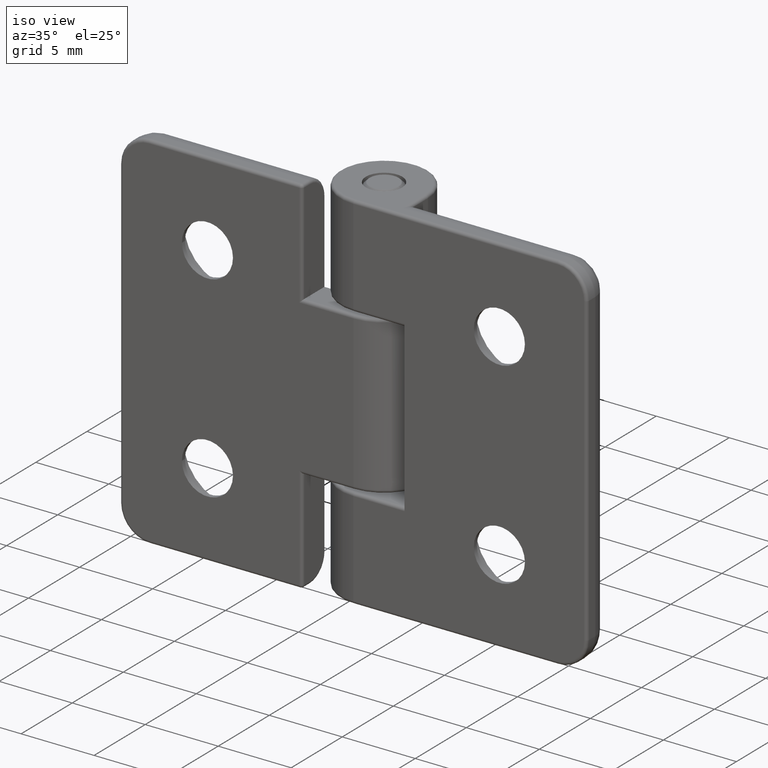
[diagram: clean part render]
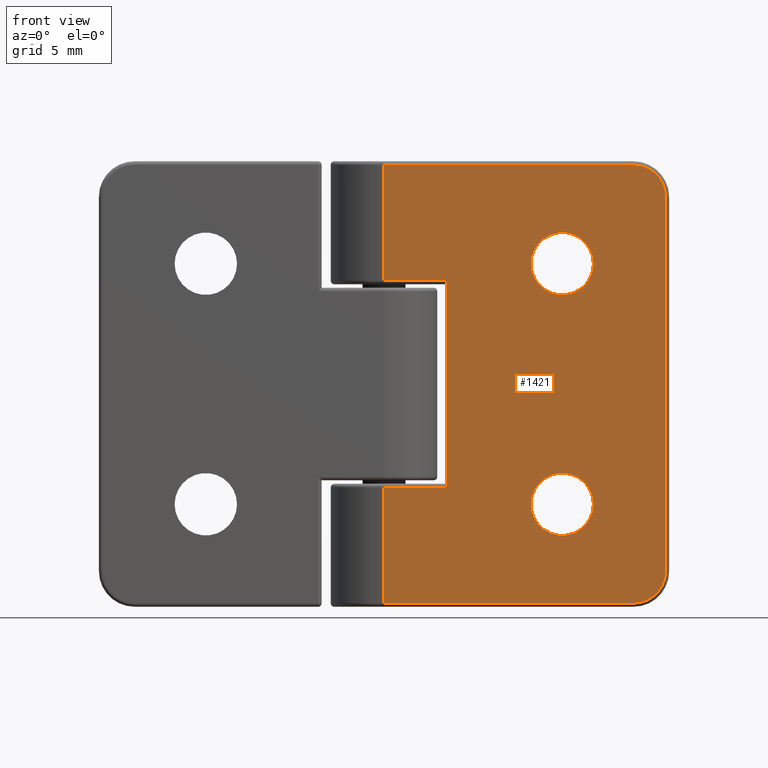
[diagram: tour spotlight — one face highlighted and labeled with its STEP entity id]
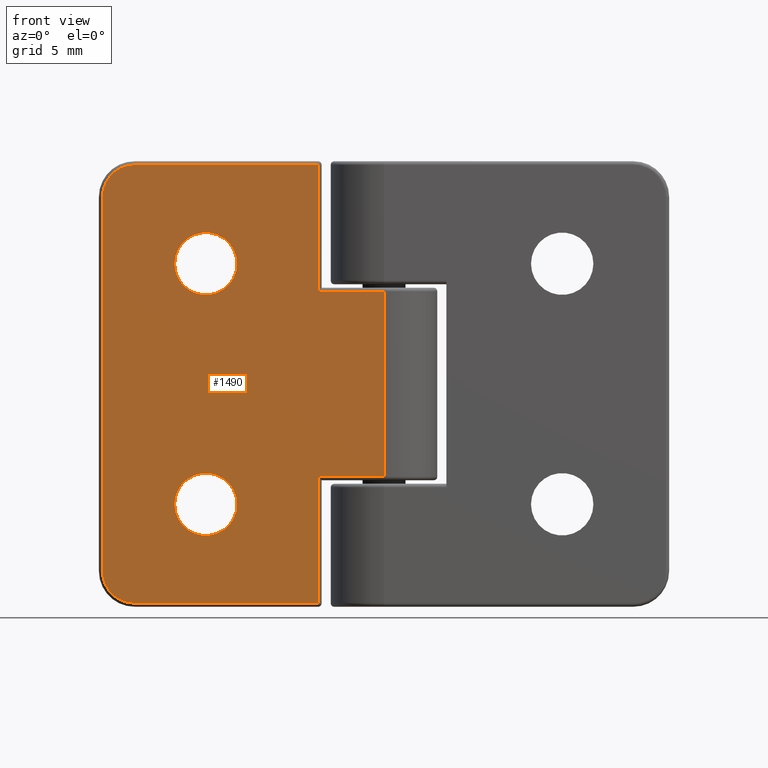
[diagram: tour spotlight — one face highlighted and labeled with its STEP entity id]
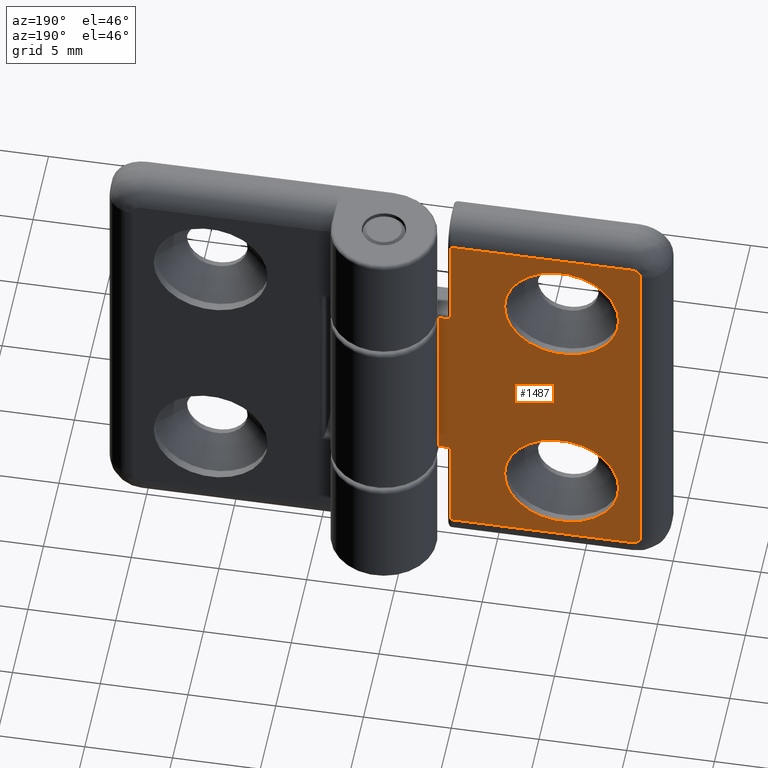
[diagram: tour spotlight — one face highlighted and labeled with its STEP entity id]
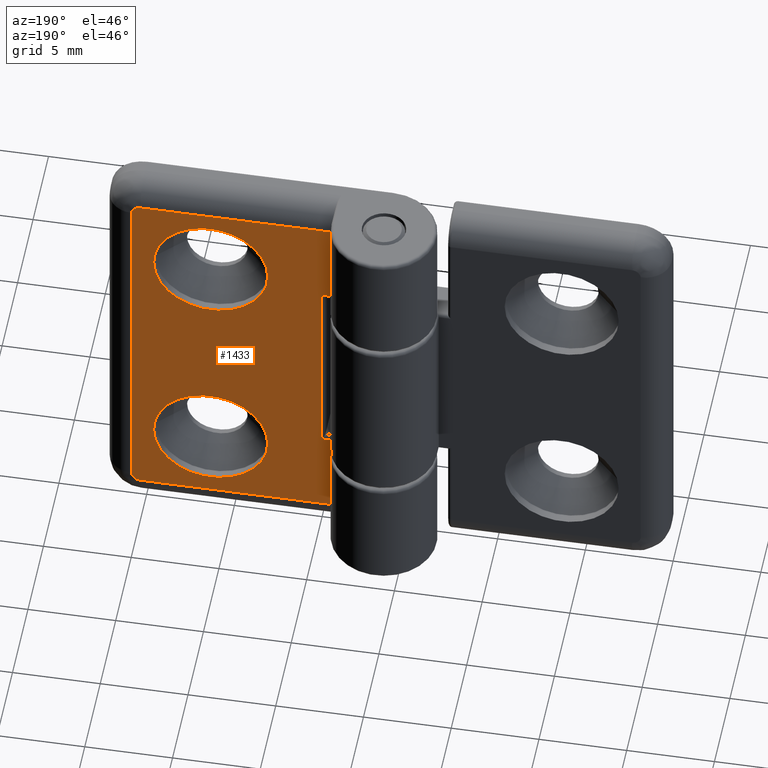
[diagram: tour spotlight — one face highlighted and labeled with its STEP entity id]
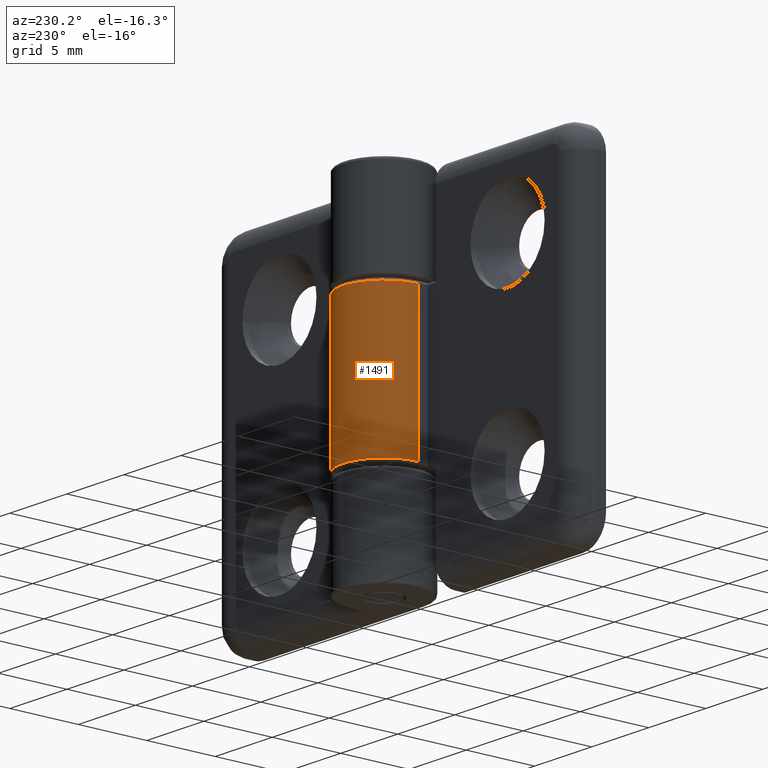
[diagram: tour spotlight — one face highlighted and labeled with its STEP entity id]
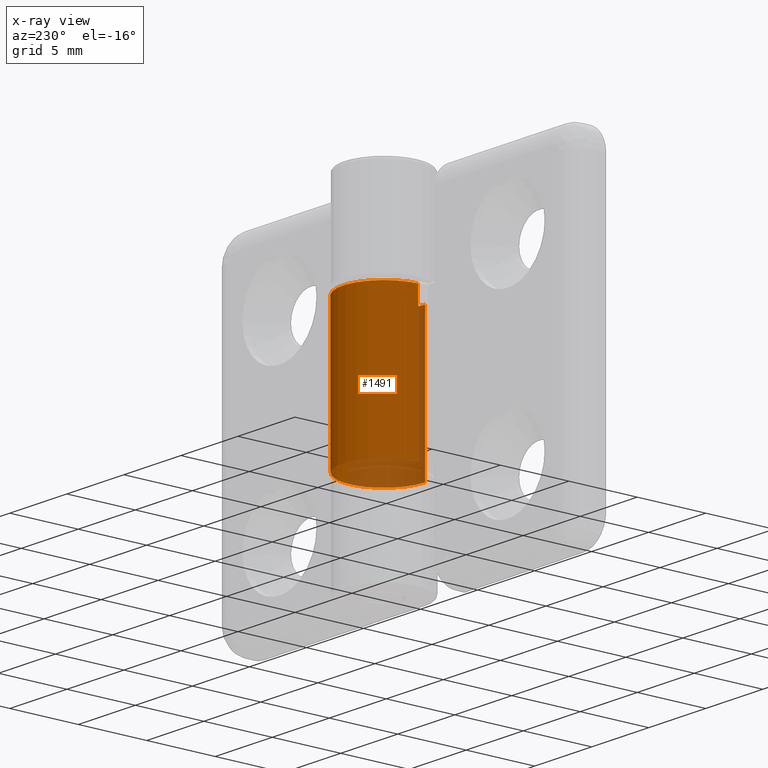
[diagram: x-ray of the same camera — body ghosted, this tour face saturated]
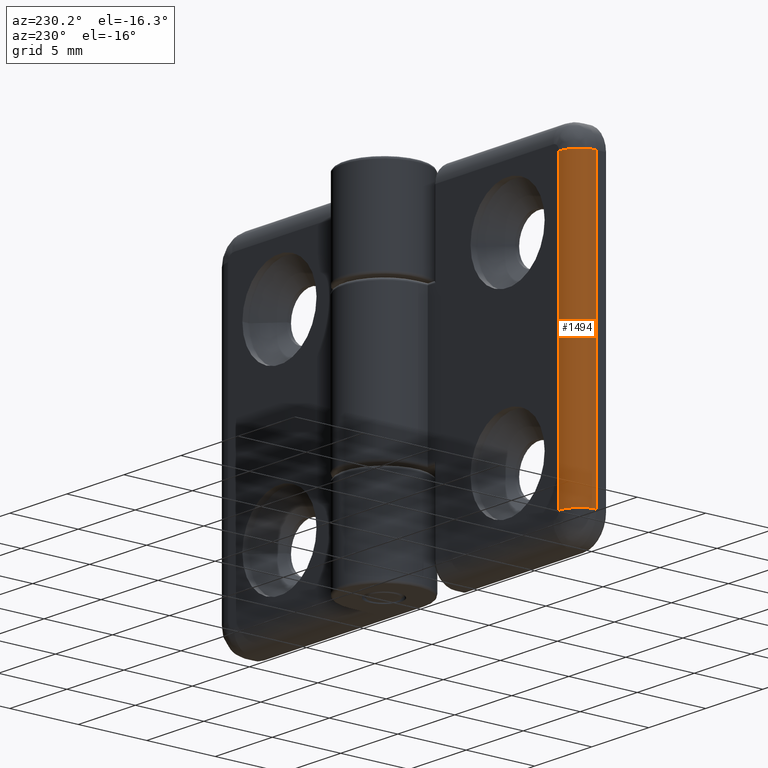
[diagram: tour spotlight — one face highlighted and labeled with its STEP entity id]
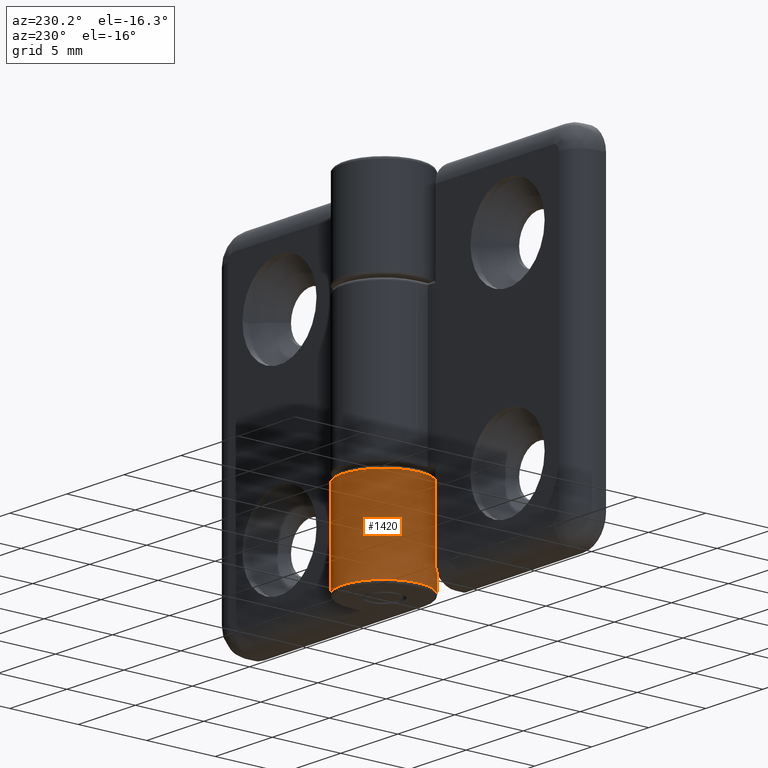
[diagram: tour spotlight — one face highlighted and labeled with its STEP entity id]
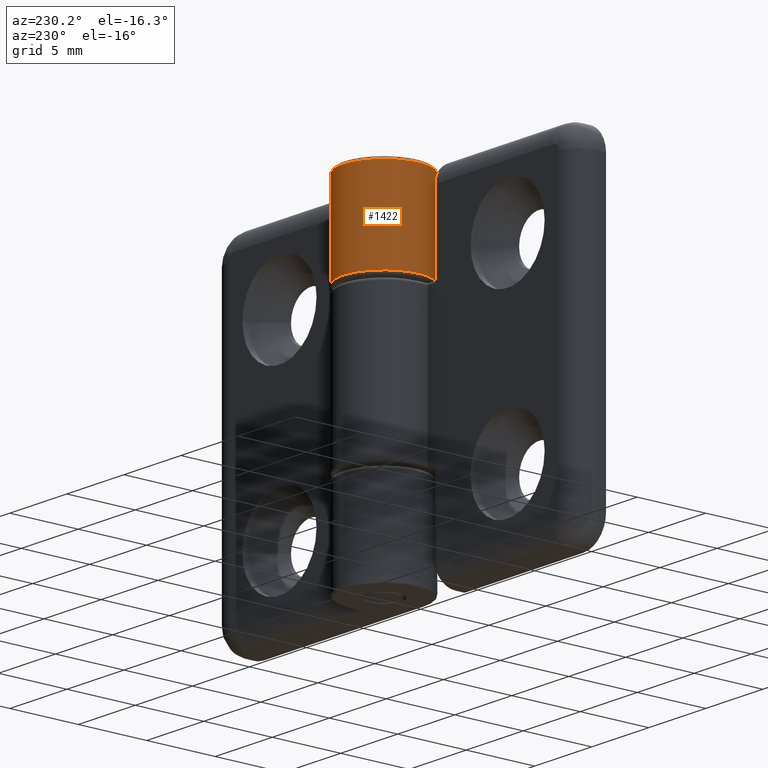
[diagram: tour spotlight — one face highlighted and labeled with its STEP entity id]
A machine part: a face-by-face anatomy tour. The part has 98 B-rep faces; the first image is the clean iso view, then the 8 largest visible faces are spotlighted one at a time (largest first), each with its STEP entity span.

Face 1 — front view, entity #1421. In plain terms, the highlighted planar face has unit normal (0, -1, 0).
Definition (entity closure, byte-faithful):
#60=FACE_BOUND('',#236,.T.);
#61=FACE_BOUND('',#237,.T.);
#93=PLANE('',#1541);
#137=FACE_OUTER_BOUND('',#235,.T.);
#235=EDGE_LOOP('',(#1003,#1004,#1005,#1006,#1007,#1008,#1009,#1010,#1011,
#1012));
#236=EDGE_LOOP('',(#1013));
#237=EDGE_LOOP('',(#1014));
#359=LINE('',#2258,#447);
#361=LINE('',#2270,#449);
#363=LINE('',#2282,#451);
#369=LINE('',#2310,#457);
#370=LINE('',#2314,#458);
#371=LINE('',#2316,#459);
#372=LINE('',#2318,#460);
#373=LINE('',#2319,#461);
#447=VECTOR('',#1743,14.);
#449=VECTOR('',#1757,21.);
#451=VECTOR('',#1771,14.);
#457=VECTOR('',#1793,6.5);
#458=VECTOR('',#1798,6.5);
#459=VECTOR('',#1799,3.5);
#460=VECTOR('',#1800,11.6);
#461=VECTOR('',#1801,3.5);
#539=CIRCLE('',#1523,1.8);
#543=CIRCLE('',#1529,1.8);
#550=CIRCLE('',#1542,1.75);
#551=CIRCLE('',#1543,1.75);
#636=VERTEX_POINT('',#2248);
#638=VERTEX_POINT('',#2254);
#640=VERTEX_POINT('',#2260);
#642=VERTEX_POINT('',#2266);
#644=VERTEX_POINT('',#2272);
#646=VERTEX_POINT('',#2278);
#655=VERTEX_POINT('',#2309);
#656=VERTEX_POINT('',#2313);
#657=VERTEX_POINT('',#2315);
#658=VERTEX_POINT('',#2317);
#659=VERTEX_POINT('',#2320);
#660=VERTEX_POINT('',#2322);
#767=EDGE_CURVE('',#636,#638,#359,.T.);
#770=EDGE_CURVE('',#638,#640,#539,.T.);
#773=EDGE_CURVE('',#640,#642,#361,.T.);
#776=EDGE_CURVE('',#642,#644,#543,.T.);
#779=EDGE_CURVE('',#644,#646,#363,.T.);
#790=EDGE_CURVE('',#646,#655,#369,.T.);
#792=EDGE_CURVE('',#656,#636,#370,.T.);
#793=EDGE_CURVE('',#657,#656,#371,.T.);
#794=EDGE_CURVE('',#657,#658,#372,.T.);
#795=EDGE_CURVE('',#655,#658,#373,.T.);
#796=EDGE_CURVE('',#659,#659,#550,.T.);
#797=EDGE_CURVE('',#660,#660,#551,.T.);
#1003=ORIENTED_EDGE('',*,*,#779,.F.);
#1004=ORIENTED_EDGE('',*,*,#776,.F.);
#1005=ORIENTED_EDGE('',*,*,#773,.F.);
#1006=ORIENTED_EDGE('',*,*,#770,.F.);
#1007=ORIENTED_EDGE('',*,*,#767,.F.);
#1008=ORIENTED_EDGE('',*,*,#792,.F.);
#1009=ORIENTED_EDGE('',*,*,#793,.F.);
#1010=ORIENTED_EDGE('',*,*,#794,.T.);
#1011=ORIENTED_EDGE('',*,*,#795,.F.);
#1012=ORIENTED_EDGE('',*,*,#790,.F.);
#1013=ORIENTED_EDGE('',*,*,#796,.T.);
#1014=ORIENTED_EDGE('',*,*,#797,.T.);
#1421=ADVANCED_FACE('',(#137,#60,#61),#93,.T.);
#1523=AXIS2_PLACEMENT_3D('',#2264,#1750,#1751);
#1529=AXIS2_PLACEMENT_3D('',#2276,#1764,#1765);
#1541=AXIS2_PLACEMENT_3D('',#2312,#1796,#1797);
#1542=AXIS2_PLACEMENT_3D('',#2321,#1802,#1803);
#1543=AXIS2_PLACEMENT_3D('',#2323,#1804,#1805);
#1743=DIRECTION('',(1.,1.38777878078145E-16,0.));
#1750=DIRECTION('center_axis',(-1.38777878078145E-16,1.,0.));
#1751=DIRECTION('ref_axis',(0.707106781186547,9.81307786677363E-17,0.707106781186547));
#1757=DIRECTION('',(0.,0.,-1.));
#1764=DIRECTION('center_axis',(-1.38777878078145E-16,1.,0.));
#1765=DIRECTION('ref_axis',(0.707106781186547,9.81307786677363E-17,-0.707106781186547));
#1771=DIRECTION('',(-1.,-1.38777878078145E-16,0.));
#1793=DIRECTION('',(0.,0.,1.));
#1796=DIRECTION('center_axis',(1.38777878078145E-16,-1.,0.));
#1797=DIRECTION('ref_axis',(1.,0.,0.));
#1798=DIRECTION('',(0.,0.,1.));
#1799=DIRECTION('',(-1.,-1.38777878078145E-16,0.));
#1800=DIRECTION('',(0.,0.,-1.));
#1801=DIRECTION('',(1.,1.38777878078145E-16,-7.15700701129897E-17));
#1802=DIRECTION('center_axis',(-1.38777878078145E-16,1.,0.));
#1803=DIRECTION('ref_axis',(1.,1.38777878078145E-16,0.));
#1804=DIRECTION('center_axis',(-1.38777878078145E-16,1.,0.));
#1805=DIRECTION('ref_axis',(1.,1.38777878078145E-16,0.));
#2248=CARTESIAN_POINT('',(3.67394039744206E-16,-3.,12.3));
#2254=CARTESIAN_POINT('',(14.,-3.,12.3));
#2258=CARTESIAN_POINT('',(3.25,-3.,12.3));
#2260=CARTESIAN_POINT('',(15.8,-3.,10.5));
#2264=CARTESIAN_POINT('Origin',(14.,-3.,10.5));
#2266=CARTESIAN_POINT('',(15.8,-3.,-10.5));
#2270=CARTESIAN_POINT('',(15.8,-3.,0.));
#2272=CARTESIAN_POINT('',(14.,-3.,-12.3));
#2276=CARTESIAN_POINT('Origin',(14.,-3.,-10.5));
#2278=CARTESIAN_POINT('',(3.67394039744206E-16,-3.,-12.3));
#2282=CARTESIAN_POINT('',(3.25,-3.,-12.3));
#2309=CARTESIAN_POINT('',(3.67394039744206E-16,-3.,-5.8));
#2310=CARTESIAN_POINT('',(3.67394039744206E-16,-3.,0.));
#2312=CARTESIAN_POINT('Origin',(3.67394039744206E-16,-3.,0.));
#2313=CARTESIAN_POINT('',(3.67394039744206E-16,-3.,5.8));
#2314=CARTESIAN_POINT('',(3.67394039744206E-16,-3.,0.));
#2315=CARTESIAN_POINT('',(3.5,-3.,5.8));
#2316=CARTESIAN_POINT('',(-6.0061962903796,-3.,5.8));
#2317=CARTESIAN_POINT('',(3.5,-3.,-5.8));
#2318=CARTESIAN_POINT('',(3.5,-3.,2.8));
#2319=CARTESIAN_POINT('',(1.75,-3.,-5.8));
#2320=CARTESIAN_POINT('',(8.25,-3.,6.75));
#2321=CARTESIAN_POINT('Origin',(10.,-3.,6.75));
#2322=CARTESIAN_POINT('',(8.25,-3.,-6.75));
#2323=CARTESIAN_POINT('Origin',(10.,-3.,-6.75));

Face 2 — front view, entity #1490. In plain terms, the highlighted planar face has unit normal (-0, -1, 0).
Definition (entity closure, byte-faithful):
#80=FACE_BOUND('',#325,.T.);
#81=FACE_BOUND('',#326,.T.);
#110=PLANE('',#1689);
#206=FACE_OUTER_BOUND('',#324,.T.);
#324=EDGE_LOOP('',(#1304,#1305,#1306,#1307,#1308,#1309,#1310,#1311,#1312,
#1313));
#325=EDGE_LOOP('',(#1314));
#326=EDGE_LOOP('',(#1315));
#406=LINE('',#2510,#494);
#408=LINE('',#2522,#496);
#410=LINE('',#2531,#498);
#415=LINE('',#2549,#503);
#418=LINE('',#2557,#506);
#420=LINE('',#2564,#508);
#425=LINE('',#2590,#513);
#442=LINE('',#2643,#530);
#494=VECTOR('',#2008,10.3);
#496=VECTOR('',#2022,21.);
#498=VECTOR('',#2034,10.3);
#503=VECTOR('',#2055,7.10000000000001);
#506=VECTOR('',#2062,7.1);
#508=VECTOR('',#2070,3.7);
#513=VECTOR('',#2101,3.7);
#530=VECTOR('',#2166,10.4);
#593=CIRCLE('',#1632,1.8);
#597=CIRCLE('',#1638,1.8);
#620=CIRCLE('',#1690,1.75);
#621=CIRCLE('',#1691,1.75);
#699=VERTEX_POINT('',#2475);
#707=VERTEX_POINT('',#2499);
#710=VERTEX_POINT('',#2506);
#712=VERTEX_POINT('',#2512);
#714=VERTEX_POINT('',#2518);
#716=VERTEX_POINT('',#2524);
#722=VERTEX_POINT('',#2548);
#725=VERTEX_POINT('',#2556);
#727=VERTEX_POINT('',#2562);
#735=VERTEX_POINT('',#2585);
#748=VERTEX_POINT('',#2644);
#749=VERTEX_POINT('',#2646);
#876=EDGE_CURVE('',#707,#710,#406,.T.);
#879=EDGE_CURVE('',#710,#712,#593,.T.);
#882=EDGE_CURVE('',#712,#714,#408,.T.);
#885=EDGE_CURVE('',#714,#716,#597,.T.);
#887=EDGE_CURVE('',#716,#699,#410,.T.);
#896=EDGE_CURVE('',#722,#707,#415,.T.);
#900=EDGE_CURVE('',#699,#725,#418,.T.);
#904=EDGE_CURVE('',#727,#722,#420,.T.);
#917=EDGE_CURVE('',#725,#735,#425,.T.);
#944=EDGE_CURVE('',#735,#727,#442,.T.);
#945=EDGE_CURVE('',#748,#748,#620,.T.);
#946=EDGE_CURVE('',#749,#749,#621,.T.);
#1304=ORIENTED_EDGE('',*,*,#904,.F.);
#1305=ORIENTED_EDGE('',*,*,#944,.F.);
#1306=ORIENTED_EDGE('',*,*,#917,.F.);
#1307=ORIENTED_EDGE('',*,*,#900,.F.);
#1308=ORIENTED_EDGE('',*,*,#887,.F.);
#1309=ORIENTED_EDGE('',*,*,#885,.F.);
#1310=ORIENTED_EDGE('',*,*,#882,.F.);
#1311=ORIENTED_EDGE('',*,*,#879,.F.);
#1312=ORIENTED_EDGE('',*,*,#876,.F.);
#1313=ORIENTED_EDGE('',*,*,#896,.F.);
#1314=ORIENTED_EDGE('',*,*,#945,.T.);
#1315=ORIENTED_EDGE('',*,*,#946,.T.);
#1490=ADVANCED_FACE('',(#206,#80,#81),#110,.T.);
#1632=AXIS2_PLACEMENT_3D('',#2516,#2015,#2016);
#1638=AXIS2_PLACEMENT_3D('',#2528,#2029,#2030);
#1689=AXIS2_PLACEMENT_3D('',#2642,#2164,#2165);
#1690=AXIS2_PLACEMENT_3D('',#2645,#2167,#2168);
#1691=AXIS2_PLACEMENT_3D('',#2647,#2169,#2170);
#2008=DIRECTION('',(1.,1.38777878078145E-16,0.));
#2015=DIRECTION('center_axis',(-1.38777878078145E-16,1.,0.));
#2016=DIRECTION('ref_axis',(0.707106781186547,9.81307786677363E-17,0.707106781186547));
#2022=DIRECTION('',(0.,0.,-1.));
#2029=DIRECTION('center_axis',(-1.38777878078145E-16,1.,0.));
#2030=DIRECTION('ref_axis',(0.707106781186547,9.81307786677363E-17,-0.707106781186547));
#2034=DIRECTION('',(-1.,-1.38777878078145E-16,0.));
#2055=DIRECTION('',(0.,0.,1.));
#2062=DIRECTION('',(3.127388801761E-16,4.34012381833743E-32,1.));
#2070=DIRECTION('',(1.,1.38777878078145E-16,-3.41607084500048E-16));
#2101=DIRECTION('',(-1.,-1.38777878078145E-16,-3.41607084500048E-16));
#2164=DIRECTION('center_axis',(1.38777878078145E-16,-1.,0.));
#2165=DIRECTION('ref_axis',(1.,0.,0.));
#2166=DIRECTION('',(0.,0.,1.));
#2167=DIRECTION('center_axis',(-1.38777878078145E-16,1.,0.));
#2168=DIRECTION('ref_axis',(1.,1.38777878078145E-16,0.));
#2169=DIRECTION('center_axis',(-1.38777878078145E-16,1.,0.));
#2170=DIRECTION('ref_axis',(1.,1.38777878078145E-16,0.));
#2475=CARTESIAN_POINT('',(3.7,-3.,-12.3));
#2499=CARTESIAN_POINT('',(3.7,-3.,12.3));
#2506=CARTESIAN_POINT('',(14.,-3.,12.3));
#2510=CARTESIAN_POINT('',(3.25,-3.,12.3));
#2512=CARTESIAN_POINT('',(15.8,-3.,10.5));
#2516=CARTESIAN_POINT('Origin',(14.,-3.,10.5));
#2518=CARTESIAN_POINT('',(15.8,-3.,-10.5));
#2522=CARTESIAN_POINT('',(15.8,-3.,0.));
#2524=CARTESIAN_POINT('',(14.,-3.,-12.3));
#2528=CARTESIAN_POINT('Origin',(14.,-3.,-10.5));
#2531=CARTESIAN_POINT('',(3.25,-3.,-12.3));
#2548=CARTESIAN_POINT('',(3.7,-3.,5.19999999999999));
#2549=CARTESIAN_POINT('',(3.7,-3.,6.25));
#2556=CARTESIAN_POINT('',(3.7,-3.,-5.2));
#2557=CARTESIAN_POINT('',(3.7,-3.,-2.7));
#2562=CARTESIAN_POINT('',(3.67394039744206E-16,-3.,5.2));
#2564=CARTESIAN_POINT('',(1.75,-3.,5.2));
#2585=CARTESIAN_POINT('',(3.67394039744206E-16,-3.,-5.2));
#2590=CARTESIAN_POINT('',(-1.5,-3.,-5.2));
#2642=CARTESIAN_POINT('Origin',(3.67394039744206E-16,-3.,0.));
#2643=CARTESIAN_POINT('',(3.67394039744206E-16,-3.,0.));
#2644=CARTESIAN_POINT('',(8.25,-3.,6.75));
#2645=CARTESIAN_POINT('Origin',(10.,-3.,6.75));
#2646=CARTESIAN_POINT('',(8.25,-3.,-6.75));
#2647=CARTESIAN_POINT('Origin',(10.,-3.,-6.75));

Face 3 — auxiliary view, entity #1487. In plain terms, the highlighted planar face has unit normal (0, 1, 0).
Definition (entity closure, byte-faithful):
#77=FACE_BOUND('',#319,.T.);
#78=FACE_BOUND('',#320,.T.);
#107=PLANE('',#1681);
#203=FACE_OUTER_BOUND('',#318,.T.);
#318=EDGE_LOOP('',(#1281,#1282,#1283,#1284,#1285,#1286,#1287,#1288,#1289,
#1290));
#319=EDGE_LOOP('',(#1291));
#320=EDGE_LOOP('',(#1292));
#399=LINE('',#2467,#487);
#403=LINE('',#2494,#491);
#412=LINE('',#2537,#500);
#427=LINE('',#2593,#515);
#432=LINE('',#2606,#520);
#439=LINE('',#2625,#527);
#440=LINE('',#2631,#528);
#441=LINE('',#2633,#529);
#487=VECTOR('',#1961,0.700000000000001);
#491=VECTOR('',#1991,5.8);
#500=VECTOR('',#2040,5.8);
#515=VECTOR('',#2105,0.7);
#520=VECTOR('',#2120,10.3);
#527=VECTOR('',#2143,10.3);
#528=VECTOR('',#2150,21.);
#529=VECTOR('',#2153,10.4);
#615=CIRCLE('',#1682,0.5);
#616=CIRCLE('',#1683,0.5);
#617=CIRCLE('',#1684,3.25);
#618=CIRCLE('',#1685,3.25);
#694=VERTEX_POINT('',#2465);
#695=VERTEX_POINT('',#2466);
#704=VERTEX_POINT('',#2488);
#705=VERTEX_POINT('',#2493);
#719=VERTEX_POINT('',#2535);
#733=VERTEX_POINT('',#2580);
#738=VERTEX_POINT('',#2604);
#742=VERTEX_POINT('',#2624);
#743=VERTEX_POINT('',#2628);
#744=VERTEX_POINT('',#2630);
#745=VERTEX_POINT('',#2634);
#746=VERTEX_POINT('',#2636);
#855=EDGE_CURVE('',#694,#695,#399,.T.);
#868=EDGE_CURVE('',#705,#704,#403,.T.);
#890=EDGE_CURVE('',#719,#694,#412,.T.);
#919=EDGE_CURVE('',#733,#705,#427,.T.);
#926=EDGE_CURVE('',#738,#719,#432,.T.);
#935=EDGE_CURVE('',#704,#742,#439,.T.);
#937=EDGE_CURVE('',#743,#738,#615,.T.);
#938=EDGE_CURVE('',#744,#743,#440,.T.);
#939=EDGE_CURVE('',#742,#744,#616,.T.);
#940=EDGE_CURVE('',#733,#695,#441,.T.);
#941=EDGE_CURVE('',#745,#745,#617,.T.);
#942=EDGE_CURVE('',#746,#746,#618,.T.);
#1281=ORIENTED_EDGE('',*,*,#855,.F.);
#1282=ORIENTED_EDGE('',*,*,#890,.F.);
#1283=ORIENTED_EDGE('',*,*,#926,.F.);
#1284=ORIENTED_EDGE('',*,*,#937,.F.);
#1285=ORIENTED_EDGE('',*,*,#938,.F.);
#1286=ORIENTED_EDGE('',*,*,#939,.F.);
#1287=ORIENTED_EDGE('',*,*,#935,.F.);
#1288=ORIENTED_EDGE('',*,*,#868,.F.);
#1289=ORIENTED_EDGE('',*,*,#919,.F.);
#1290=ORIENTED_EDGE('',*,*,#940,.T.);
#1291=ORIENTED_EDGE('',*,*,#941,.T.);
#1292=ORIENTED_EDGE('',*,*,#942,.T.);
#1487=ADVANCED_FACE('',(#203,#77,#78),#107,.T.);
#1681=AXIS2_PLACEMENT_3D('',#2627,#2146,#2147);
#1682=AXIS2_PLACEMENT_3D('',#2629,#2148,#2149);
#1683=AXIS2_PLACEMENT_3D('',#2632,#2151,#2152);
#1684=AXIS2_PLACEMENT_3D('',#2635,#2154,#2155);
#1685=AXIS2_PLACEMENT_3D('',#2637,#2156,#2157);
#1961=DIRECTION('',(-1.,0.,3.41607084500048E-16));
#1991=DIRECTION('',(-3.127388801761E-16,0.,-1.));
#2040=DIRECTION('',(0.,0.,-1.));
#2105=DIRECTION('',(1.,0.,3.41607084500048E-16));
#2120=DIRECTION('',(-1.,0.,0.));
#2143=DIRECTION('',(1.,0.,0.));
#2146=DIRECTION('center_axis',(0.,1.,0.));
#2147=DIRECTION('ref_axis',(-1.,0.,0.));
#2148=DIRECTION('center_axis',(0.,-1.,0.));
#2149=DIRECTION('ref_axis',(0.707106781186548,0.,0.707106781186548));
#2150=DIRECTION('',(0.,0.,1.));
#2151=DIRECTION('center_axis',(0.,-1.,0.));
#2152=DIRECTION('ref_axis',(0.707106781186548,0.,-0.707106781186548));
#2153=DIRECTION('',(0.,0.,1.));
#2154=DIRECTION('center_axis',(0.,-1.,0.));
#2155=DIRECTION('ref_axis',(1.,0.,0.));
#2156=DIRECTION('center_axis',(0.,-1.,0.));
#2157=DIRECTION('ref_axis',(1.,0.,0.));
#2465=CARTESIAN_POINT('',(3.7,-0.699999999999999,5.2));
#2466=CARTESIAN_POINT('',(3.,-0.699999999999999,5.2));
#2467=CARTESIAN_POINT('',(9.75,-0.699999999999999,5.19999999999999));
#2488=CARTESIAN_POINT('',(3.7,-0.699999999999999,-11.));
#2493=CARTESIAN_POINT('',(3.7,-0.699999999999999,-5.2));
#2494=CARTESIAN_POINT('',(3.7,-0.699999999999999,-2.7));
#2535=CARTESIAN_POINT('',(3.7,-0.699999999999999,11.));
#2537=CARTESIAN_POINT('',(3.7,-0.699999999999999,6.25));
#2580=CARTESIAN_POINT('',(3.,-0.699999999999999,-5.2));
#2593=CARTESIAN_POINT('',(6.5,-0.699999999999999,-5.19999999999999));
#2604=CARTESIAN_POINT('',(14.,-0.699999999999999,11.));
#2606=CARTESIAN_POINT('',(11.25,-0.699999999999999,11.));
#2624=CARTESIAN_POINT('',(14.,-0.699999999999999,-11.));
#2625=CARTESIAN_POINT('',(11.25,-0.699999999999999,-11.));
#2627=CARTESIAN_POINT('Origin',(16.,-0.699999999999999,0.));
#2628=CARTESIAN_POINT('',(14.5,-0.699999999999999,10.5));
#2629=CARTESIAN_POINT('Origin',(14.,-0.699999999999999,10.5));
#2630=CARTESIAN_POINT('',(14.5,-0.699999999999999,-10.5));
#2631=CARTESIAN_POINT('',(14.5,-0.699999999999999,0.));
#2632=CARTESIAN_POINT('Origin',(14.,-0.699999999999999,-10.5));
#2633=CARTESIAN_POINT('',(3.,-0.699999999999999,0.));
#2634=CARTESIAN_POINT('',(13.25,-0.699999999999999,6.75));
#2635=CARTESIAN_POINT('Origin',(10.,-0.699999999999999,6.75));
#2636=CARTESIAN_POINT('',(13.25,-0.699999999999999,-6.75));
#2637=CARTESIAN_POINT('Origin',(10.,-0.699999999999999,-6.75));

Face 4 — auxiliary view, entity #1433. In plain terms, the highlighted planar face has unit normal (0, 1, 0).
Definition (entity closure, byte-faithful):
#62=FACE_BOUND('',#250,.T.);
#63=FACE_BOUND('',#251,.T.);
#95=PLANE('',#1569);
#149=FACE_OUTER_BOUND('',#249,.T.);
#249=EDGE_LOOP('',(#1060,#1061,#1062,#1063,#1064,#1065,#1066,#1067,#1068,
#1069));
#250=EDGE_LOOP('',(#1070));
#251=EDGE_LOOP('',(#1071));
#368=LINE('',#2306,#456);
#375=LINE('',#2332,#463);
#380=LINE('',#2353,#468);
#382=LINE('',#2359,#470);
#384=LINE('',#2364,#472);
#387=LINE('',#2379,#475);
#388=LINE('',#2383,#476);
#389=LINE('',#2386,#477);
#456=VECTOR('',#1788,5.2);
#463=VECTOR('',#1815,5.2);
#468=VECTOR('',#1840,0.700000000000001);
#470=VECTOR('',#1846,11.6);
#472=VECTOR('',#1852,0.7);
#475=VECTOR('',#1871,11.);
#476=VECTOR('',#1874,21.);
#477=VECTOR('',#1877,11.);
#562=CIRCLE('',#1570,0.5);
#563=CIRCLE('',#1571,0.5);
#564=CIRCLE('',#1572,3.25);
#565=CIRCLE('',#1573,3.25);
#653=VERTEX_POINT('',#2303);
#654=VERTEX_POINT('',#2305);
#662=VERTEX_POINT('',#2329);
#663=VERTEX_POINT('',#2331);
#669=VERTEX_POINT('',#2351);
#671=VERTEX_POINT('',#2357);
#676=VERTEX_POINT('',#2378);
#677=VERTEX_POINT('',#2380);
#678=VERTEX_POINT('',#2382);
#679=VERTEX_POINT('',#2384);
#680=VERTEX_POINT('',#2387);
#681=VERTEX_POINT('',#2389);
#788=EDGE_CURVE('',#654,#653,#368,.T.);
#801=EDGE_CURVE('',#663,#662,#375,.T.);
#812=EDGE_CURVE('',#669,#653,#380,.T.);
#815=EDGE_CURVE('',#671,#669,#382,.T.);
#818=EDGE_CURVE('',#663,#671,#384,.T.);
#825=EDGE_CURVE('',#676,#662,#387,.T.);
#826=EDGE_CURVE('',#677,#676,#562,.T.);
#827=EDGE_CURVE('',#678,#677,#388,.T.);
#828=EDGE_CURVE('',#679,#678,#563,.T.);
#829=EDGE_CURVE('',#654,#679,#389,.T.);
#830=EDGE_CURVE('',#680,#680,#564,.T.);
#831=EDGE_CURVE('',#681,#681,#565,.T.);
#1060=ORIENTED_EDGE('',*,*,#812,.F.);
#1061=ORIENTED_EDGE('',*,*,#815,.F.);
#1062=ORIENTED_EDGE('',*,*,#818,.F.);
#1063=ORIENTED_EDGE('',*,*,#801,.T.);
#1064=ORIENTED_EDGE('',*,*,#825,.F.);
#1065=ORIENTED_EDGE('',*,*,#826,.F.);
#1066=ORIENTED_EDGE('',*,*,#827,.F.);
#1067=ORIENTED_EDGE('',*,*,#828,.F.);
#1068=ORIENTED_EDGE('',*,*,#829,.F.);
#1069=ORIENTED_EDGE('',*,*,#788,.T.);
#1070=ORIENTED_EDGE('',*,*,#830,.T.);
#1071=ORIENTED_EDGE('',*,*,#831,.T.);
#1433=ADVANCED_FACE('',(#149,#62,#63),#95,.T.);
#1569=AXIS2_PLACEMENT_3D('',#2377,#1869,#1870);
#1570=AXIS2_PLACEMENT_3D('',#2381,#1872,#1873);
#1571=AXIS2_PLACEMENT_3D('',#2385,#1875,#1876);
#1572=AXIS2_PLACEMENT_3D('',#2388,#1878,#1879);
#1573=AXIS2_PLACEMENT_3D('',#2390,#1880,#1881);
#1788=DIRECTION('',(0.,0.,1.));
#1815=DIRECTION('',(0.,0.,1.));
#1840=DIRECTION('',(-1.,0.,7.15700701129897E-17));
#1846=DIRECTION('',(0.,0.,-1.));
#1852=DIRECTION('',(1.,0.,0.));
#1869=DIRECTION('center_axis',(0.,1.,0.));
#1870=DIRECTION('ref_axis',(-1.,0.,0.));
#1871=DIRECTION('',(-1.,0.,0.));
#1872=DIRECTION('center_axis',(0.,-1.,0.));
#1873=DIRECTION('ref_axis',(0.707106781186548,0.,0.707106781186548));
#1874=DIRECTION('',(0.,0.,1.));
#1875=DIRECTION('center_axis',(0.,-1.,0.));
#1876=DIRECTION('ref_axis',(0.707106781186548,0.,-0.707106781186548));
#1877=DIRECTION('',(1.,0.,0.));
#1878=DIRECTION('center_axis',(0.,-1.,0.));
#1879=DIRECTION('ref_axis',(1.,0.,0.));
#1880=DIRECTION('center_axis',(0.,-1.,0.));
#1881=DIRECTION('ref_axis',(1.,0.,0.));
#2303=CARTESIAN_POINT('',(3.,-0.699999999999999,-5.8));
#2305=CARTESIAN_POINT('',(3.,-0.699999999999999,-11.));
#2306=CARTESIAN_POINT('',(3.,-0.699999999999999,0.));
#2329=CARTESIAN_POINT('',(3.,-0.699999999999999,11.));
#2331=CARTESIAN_POINT('',(3.,-0.699999999999999,5.8));
#2332=CARTESIAN_POINT('',(3.,-0.699999999999999,0.));
#2351=CARTESIAN_POINT('',(3.7,-0.699999999999999,-5.8));
#2353=CARTESIAN_POINT('',(9.75,-0.699999999999999,-5.8));
#2357=CARTESIAN_POINT('',(3.7,-0.699999999999999,5.8));
#2359=CARTESIAN_POINT('',(3.7,-0.699999999999999,2.8));
#2364=CARTESIAN_POINT('',(1.9938037096204,-0.699999999999999,5.8));
#2377=CARTESIAN_POINT('Origin',(16.,-0.699999999999999,0.));
#2378=CARTESIAN_POINT('',(14.,-0.699999999999999,11.));
#2379=CARTESIAN_POINT('',(11.25,-0.699999999999999,11.));
#2380=CARTESIAN_POINT('',(14.5,-0.699999999999999,10.5));
#2381=CARTESIAN_POINT('Origin',(14.,-0.699999999999999,10.5));
#2382=CARTESIAN_POINT('',(14.5,-0.699999999999999,-10.5));
#2383=CARTESIAN_POINT('',(14.5,-0.699999999999999,0.));
#2384=CARTESIAN_POINT('',(14.,-0.699999999999999,-11.));
#2385=CARTESIAN_POINT('Origin',(14.,-0.699999999999999,-10.5));
#2386=CARTESIAN_POINT('',(11.25,-0.699999999999999,-11.));
#2387=CARTESIAN_POINT('',(13.25,-0.699999999999999,6.75));
#2388=CARTESIAN_POINT('Origin',(10.,-0.699999999999999,6.75));
#2389=CARTESIAN_POINT('',(13.25,-0.699999999999999,-6.75));
#2390=CARTESIAN_POINT('Origin',(10.,-0.699999999999999,-6.75));

Face 5 — auxiliary view, entity #1491. An x-ray twin of the same camera follows (body ghosted, this face saturated) — the face is partly hidden behind the body. In plain terms, the highlighted cylindrical surface (partial cylindrical patch) has radius 3 mm, axis along (0, 0, -1).
Definition (entity closure, byte-faithful):
#207=FACE_OUTER_BOUND('',#327,.T.);
#327=EDGE_LOOP('',(#1316,#1317,#1318,#1319));
#442=LINE('',#2643,#530);
#443=LINE('',#2649,#531);
#530=VECTOR('',#2166,10.4);
#531=VECTOR('',#2173,10.4);
#604=CIRCLE('',#1655,3.);
#608=CIRCLE('',#1663,3.);
#727=VERTEX_POINT('',#2562);
#729=VERTEX_POINT('',#2567);
#732=VERTEX_POINT('',#2578);
#735=VERTEX_POINT('',#2585);
#906=EDGE_CURVE('',#729,#727,#604,.T.);
#915=EDGE_CURVE('',#735,#732,#608,.T.);
#944=EDGE_CURVE('',#735,#727,#442,.T.);
#947=EDGE_CURVE('',#732,#729,#443,.T.);
#1316=ORIENTED_EDGE('',*,*,#906,.F.);
#1317=ORIENTED_EDGE('',*,*,#947,.F.);
#1318=ORIENTED_EDGE('',*,*,#915,.F.);
#1319=ORIENTED_EDGE('',*,*,#944,.T.);
#1402=CYLINDRICAL_SURFACE('',#1692,3.);
#1491=ADVANCED_FACE('',(#207),#1402,.T.);
#1655=AXIS2_PLACEMENT_3D('',#2569,#2075,#2076);
#1663=AXIS2_PLACEMENT_3D('',#2587,#2095,#2096);
#1692=AXIS2_PLACEMENT_3D('',#2648,#2171,#2172);
#2075=DIRECTION('center_axis',(3.41607084500048E-16,4.21400056207805E-32,
1.));
#2076=DIRECTION('ref_axis',(-0.707106781186547,0.707106781186547,2.4155268595135E-16));
#2095=DIRECTION('center_axis',(3.41607084500048E-16,4.21400056207805E-32,
-1.));
#2096=DIRECTION('ref_axis',(-0.707106781186548,0.707106781186547,-2.4155268595135E-16));
#2166=DIRECTION('',(0.,0.,1.));
#2171=DIRECTION('center_axis',(0.,0.,1.));
#2172=DIRECTION('ref_axis',(-0.707106781186548,0.707106781186547,0.));
#2173=DIRECTION('',(0.,0.,1.));
#2562=CARTESIAN_POINT('',(3.67394039744206E-16,-3.,5.2));
#2567=CARTESIAN_POINT('',(3.,3.67394039744206E-16,5.19999999999999));
#2569=CARTESIAN_POINT('Origin',(0.,0.,5.2));
#2578=CARTESIAN_POINT('',(3.,3.67394039744206E-16,-5.2));
#2585=CARTESIAN_POINT('',(3.67394039744206E-16,-3.,-5.2));
#2587=CARTESIAN_POINT('Origin',(0.,0.,-5.2));
#2643=CARTESIAN_POINT('',(3.67394039744206E-16,-3.,0.));
#2648=CARTESIAN_POINT('Origin',(0.,0.,0.));
#2649=CARTESIAN_POINT('',(3.,3.67394039744206E-16,0.));

Face 6 — auxiliary view, entity #1494. In plain terms, the highlighted cylindrical surface (edge-blend (fillet) strip) has radius 1.5 mm, axis along (0, 0, -1).
Definition (entity closure, byte-faithful):
#210=FACE_OUTER_BOUND('',#330,.T.);
#330=EDGE_LOOP('',(#1328,#1329,#1330,#1331));
#436=LINE('',#2616,#524);
#440=LINE('',#2631,#528);
#524=VECTOR('',#2132,21.);
#528=VECTOR('',#2150,21.);
#622=CIRCLE('',#1693,1.5);
#623=CIRCLE('',#1694,1.5);
#739=VERTEX_POINT('',#2610);
#740=VERTEX_POINT('',#2614);
#743=VERTEX_POINT('',#2628);
#744=VERTEX_POINT('',#2630);
#931=EDGE_CURVE('',#739,#740,#436,.T.);
#938=EDGE_CURVE('',#744,#743,#440,.T.);
#948=EDGE_CURVE('',#740,#744,#622,.T.);
#949=EDGE_CURVE('',#743,#739,#623,.T.);
#1328=ORIENTED_EDGE('',*,*,#949,.T.);
#1329=ORIENTED_EDGE('',*,*,#931,.T.);
#1330=ORIENTED_EDGE('',*,*,#948,.T.);
#1331=ORIENTED_EDGE('',*,*,#938,.T.);
#1403=CYLINDRICAL_SURFACE('',#1695,1.5);
#1494=ADVANCED_FACE('',(#210),#1403,.T.);
#1693=AXIS2_PLACEMENT_3D('',#2659,#2174,#2175);
#1694=AXIS2_PLACEMENT_3D('',#2669,#2176,#2177);
#1695=AXIS2_PLACEMENT_3D('',#2670,#2178,#2179);
#2132=DIRECTION('',(0.,0.,-1.));
#2150=DIRECTION('',(0.,0.,1.));
#2174=DIRECTION('center_axis',(0.,0.,1.));
#2175=DIRECTION('ref_axis',(1.,0.,0.));
#2176=DIRECTION('center_axis',(0.,0.,-1.));
#2177=DIRECTION('ref_axis',(0.,1.,0.));
#2178=DIRECTION('center_axis',(0.,0.,1.));
#2179=DIRECTION('ref_axis',(0.707106781186547,0.707106781186548,0.));
#2610=CARTESIAN_POINT('',(16.,-2.2,10.5));
#2614=CARTESIAN_POINT('',(16.,-2.2,-10.5));
#2616=CARTESIAN_POINT('',(16.,-2.2,0.));
#2628=CARTESIAN_POINT('',(14.5,-0.699999999999999,10.5));
#2630=CARTESIAN_POINT('',(14.5,-0.699999999999999,-10.5));
#2631=CARTESIAN_POINT('',(14.5,-0.699999999999999,0.));
#2659=CARTESIAN_POINT('Origin',(14.5,-2.2,-10.5));
#2669=CARTESIAN_POINT('Origin',(14.5,-2.2,10.5));
#2670=CARTESIAN_POINT('Origin',(14.5,-2.2,0.));

Face 7 — auxiliary view, entity #1420. In plain terms, the highlighted cylindrical surface (partial cylindrical patch) has radius 3 mm, axis along (0, 0, 1).
Definition (entity closure, byte-faithful):
#136=FACE_OUTER_BOUND('',#234,.T.);
#234=EDGE_LOOP('',(#999,#1000,#1001,#1002));
#366=LINE('',#2302,#454);
#369=LINE('',#2310,#457);
#454=VECTOR('',#1786,6.5);
#457=VECTOR('',#1793,6.5);
#547=CIRCLE('',#1535,3.);
#549=CIRCLE('',#1540,3.);
#646=VERTEX_POINT('',#2278);
#648=VERTEX_POINT('',#2284);
#652=VERTEX_POINT('',#2301);
#655=VERTEX_POINT('',#2309);
#782=EDGE_CURVE('',#646,#648,#547,.T.);
#786=EDGE_CURVE('',#648,#652,#366,.T.);
#790=EDGE_CURVE('',#646,#655,#369,.T.);
#791=EDGE_CURVE('',#652,#655,#549,.T.);
#999=ORIENTED_EDGE('',*,*,#782,.F.);
#1000=ORIENTED_EDGE('',*,*,#790,.T.);
#1001=ORIENTED_EDGE('',*,*,#791,.F.);
#1002=ORIENTED_EDGE('',*,*,#786,.F.);
#1363=CYLINDRICAL_SURFACE('',#1539,3.);
#1420=ADVANCED_FACE('',(#136),#1363,.T.);
#1535=AXIS2_PLACEMENT_3D('',#2288,#1778,#1779);
#1539=AXIS2_PLACEMENT_3D('',#2308,#1791,#1792);
#1540=AXIS2_PLACEMENT_3D('',#2311,#1794,#1795);
#1778=DIRECTION('center_axis',(0.,0.,-1.));
#1779=DIRECTION('ref_axis',(-0.707106781186547,0.707106781186547,0.));
#1786=DIRECTION('',(0.,0.,1.));
#1791=DIRECTION('center_axis',(0.,0.,1.));
#1792=DIRECTION('ref_axis',(-0.707106781186548,0.707106781186547,0.));
#1793=DIRECTION('',(0.,0.,1.));
#1794=DIRECTION('center_axis',(7.15700701129897E-17,8.8287488570531E-33,
1.));
#1795=DIRECTION('ref_axis',(-0.707106781186548,0.707106781186547,5.06076819068917E-17));
#2278=CARTESIAN_POINT('',(3.67394039744206E-16,-3.,-12.3));
#2284=CARTESIAN_POINT('',(3.,3.67394039744206E-16,-12.3));
#2288=CARTESIAN_POINT('Origin',(0.,0.,-12.3));
#2301=CARTESIAN_POINT('',(3.,3.67394039744206E-16,-5.8));
#2302=CARTESIAN_POINT('',(3.,3.67394039744206E-16,0.));
#2308=CARTESIAN_POINT('Origin',(0.,0.,0.));
#2309=CARTESIAN_POINT('',(3.67394039744206E-16,-3.,-5.8));
#2310=CARTESIAN_POINT('',(3.67394039744206E-16,-3.,0.));
#2311=CARTESIAN_POINT('Origin',(0.,0.,-5.8));

Face 8 — auxiliary view, entity #1422. In plain terms, the highlighted cylindrical surface (partial cylindrical patch) has radius 3 mm, axis along (0, 0, 1).
Definition (entity closure, byte-faithful):
#138=FACE_OUTER_BOUND('',#238,.T.);
#238=EDGE_LOOP('',(#1015,#1016,#1017,#1018));
#370=LINE('',#2314,#458);
#374=LINE('',#2326,#462);
#458=VECTOR('',#1798,6.5);
#462=VECTOR('',#1808,6.5);
#535=CIRCLE('',#1517,3.);
#552=CIRCLE('',#1545,3.);
#632=VERTEX_POINT('',#2234);
#636=VERTEX_POINT('',#2248);
#656=VERTEX_POINT('',#2313);
#661=VERTEX_POINT('',#2325);
#764=EDGE_CURVE('',#632,#636,#535,.T.);
#792=EDGE_CURVE('',#656,#636,#370,.T.);
#798=EDGE_CURVE('',#661,#632,#374,.T.);
#799=EDGE_CURVE('',#656,#661,#552,.T.);
#1015=ORIENTED_EDGE('',*,*,#764,.F.);
#1016=ORIENTED_EDGE('',*,*,#798,.F.);
#1017=ORIENTED_EDGE('',*,*,#799,.F.);
#1018=ORIENTED_EDGE('',*,*,#792,.T.);
#1364=CYLINDRICAL_SURFACE('',#1544,3.);
#1422=ADVANCED_FACE('',(#138),#1364,.T.);
#1517=AXIS2_PLACEMENT_3D('',#2252,#1736,#1737);
#1544=AXIS2_PLACEMENT_3D('',#2324,#1806,#1807);
#1545=AXIS2_PLACEMENT_3D('',#2327,#1809,#1810);
#1736=DIRECTION('center_axis',(0.,0.,1.));
#1737=DIRECTION('ref_axis',(-0.707106781186547,0.707106781186547,0.));
#1798=DIRECTION('',(0.,0.,1.));
#1806=DIRECTION('center_axis',(0.,0.,1.));
#1807=DIRECTION('ref_axis',(-0.707106781186548,0.707106781186547,0.));
#1808=DIRECTION('',(0.,0.,1.));
#1809=DIRECTION('center_axis',(0.,0.,-1.));
#1810=DIRECTION('ref_axis',(-0.707106781186547,0.707106781186547,0.));
#2234=CARTESIAN_POINT('',(3.,3.67394039744206E-16,12.3));
#2248=CARTESIAN_POINT('',(3.67394039744206E-16,-3.,12.3));
#2252=CARTESIAN_POINT('Origin',(0.,0.,12.3));
#2313=CARTESIAN_POINT('',(3.67394039744206E-16,-3.,5.8));
#2314=CARTESIAN_POINT('',(3.67394039744206E-16,-3.,0.));
#2324=CARTESIAN_POINT('Origin',(0.,0.,0.));
#2325=CARTESIAN_POINT('',(3.,3.67394039744206E-16,5.8));
#2326=CARTESIAN_POINT('',(3.,3.67394039744206E-16,0.));
#2327=CARTESIAN_POINT('Origin',(0.,0.,5.8));